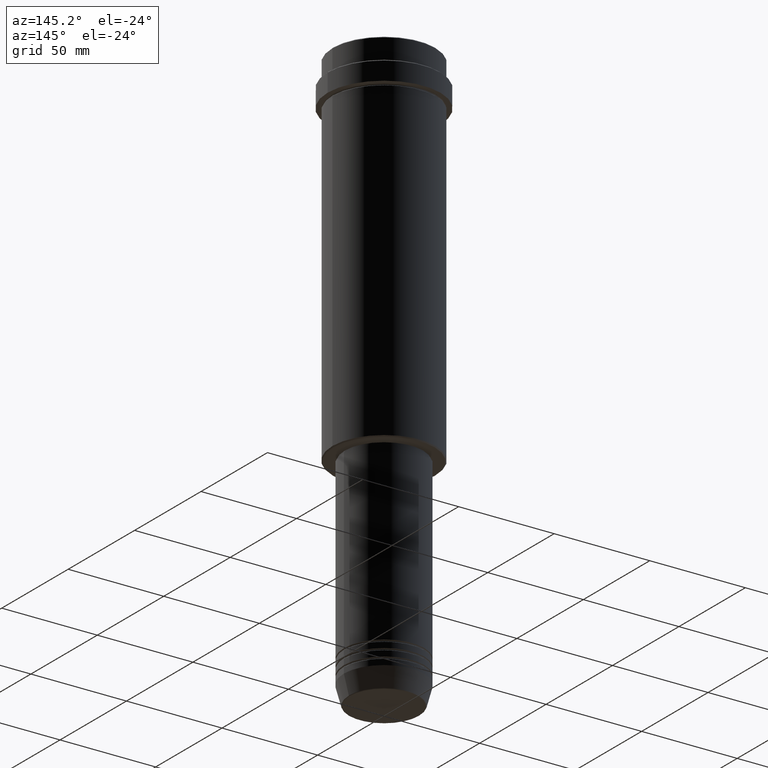
[diagram: clean part render]
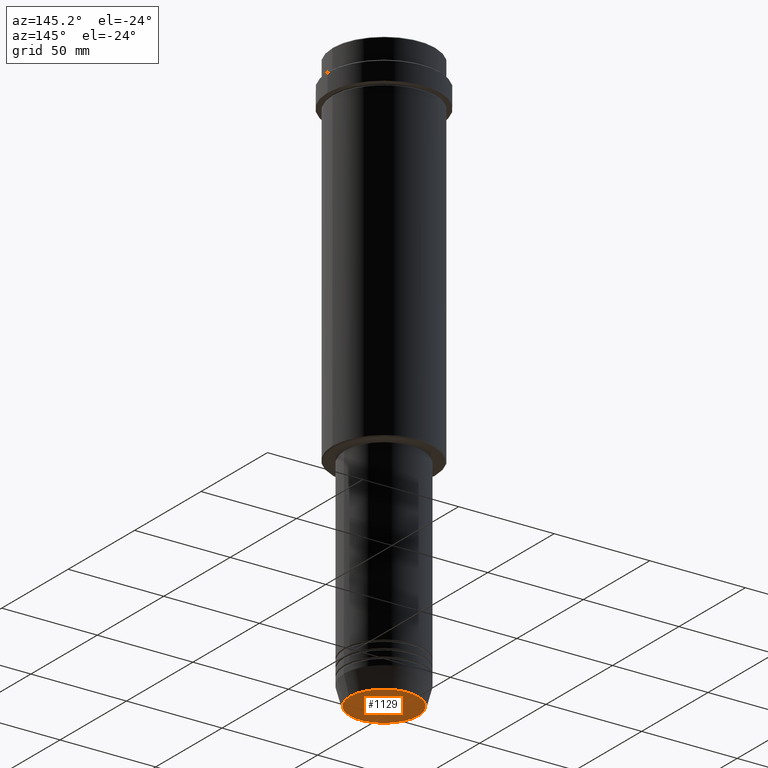
[diagram: same view with one face highlighted and labeled with its STEP entity id]
A machine part, auxiliary view. The second image highlights one B-rep face of the part: STEP entity #1129.
In plain terms, the highlighted planar face has unit normal (0, -0, 1).
Its self-contained STEP definition (entity closure, byte-faithful):
#24 = CIRCLE ( 'NONE', #669, 17.93684458169929030 ) ;
#38 = CARTESIAN_POINT ( 'NONE',  ( 0.000000000000000000, 0.000000000000000000, -303.0000000000000000 ) ) ;
#50 = CIRCLE ( 'NONE', #910, 17.93684458169929030 ) ;
#55 = DIRECTION ( 'NONE',  ( 0.000000000000000000, -0.000000000000000000, 1.000000000000000000 ) ) ;
#88 = DIRECTION ( 'NONE',  ( 0.000000000000000000, 0.000000000000000000, -1.000000000000000000 ) ) ;
#175 = VERTEX_POINT ( 'NONE', #1077 ) ;
#185 = AXIS2_PLACEMENT_3D ( 'NONE', #1043, #55, #1145 ) ;
#195 = ORIENTED_EDGE ( 'NONE', *, *, #673, .T. ) ;
#268 = ORIENTED_EDGE ( 'NONE', *, *, #713, .T. ) ;
#565 = DIRECTION ( 'NONE',  ( 0.000000000000000000, 0.000000000000000000, -1.000000000000000000 ) ) ;
#592 = PLANE ( 'NONE',  #185 ) ;
#669 = AXIS2_PLACEMENT_3D ( 'NONE', #38, #565, #1364 ) ;
#673 = EDGE_CURVE ( 'NONE', #1018, #175, #50, .T. ) ;
#713 = EDGE_CURVE ( 'NONE', #175, #1018, #24, .T. ) ;
#808 = FACE_OUTER_BOUND ( 'NONE', #1103, .T. ) ;
#849 = DIRECTION ( 'NONE',  ( 1.000000000000000000, 0.000000000000000000, 0.000000000000000000 ) ) ;
#910 = AXIS2_PLACEMENT_3D ( 'NONE', #1385, #88, #849 ) ;
#1018 = VERTEX_POINT ( 'NONE', #1023 ) ;
#1023 = CARTESIAN_POINT ( 'NONE',  ( 17.93684458169929030, 0.000000000000000000, -303.0000000000000000 ) ) ;
#1043 = CARTESIAN_POINT ( 'NONE',  ( 0.000000000000000000, 0.000000000000000000, -303.0000000000000000 ) ) ;
#1077 = CARTESIAN_POINT ( 'NONE',  ( -17.93684458169929030, 2.226202879662625134E-15, -303.0000000000000000 ) ) ;
#1103 = EDGE_LOOP ( 'NONE', ( #195, #268 ) ) ;
#1129 = ADVANCED_FACE ( 'NONE', ( #808 ), #592, .F. ) ;
#1145 = DIRECTION ( 'NONE',  ( 1.000000000000000000, 0.000000000000000000, 0.000000000000000000 ) ) ;
#1364 = DIRECTION ( 'NONE',  ( 1.000000000000000000, 0.000000000000000000, 0.000000000000000000 ) ) ;
#1385 = CARTESIAN_POINT ( 'NONE',  ( 0.000000000000000000, 0.000000000000000000, -303.0000000000000000 ) ) ;